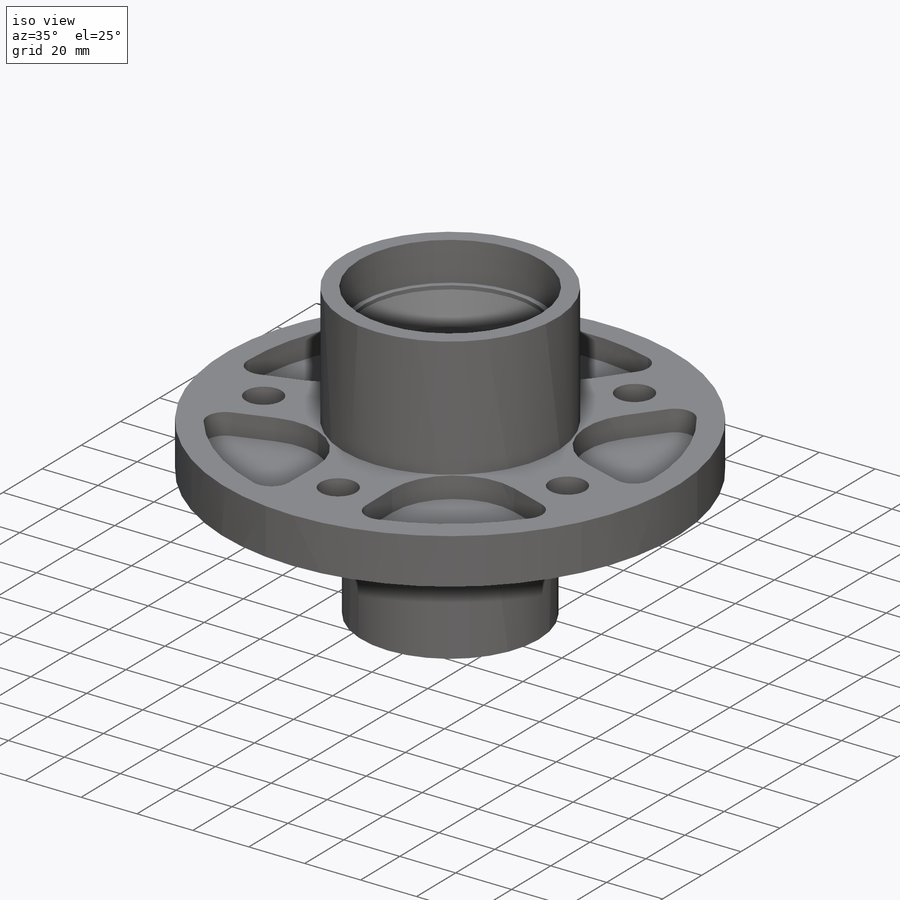
[diagram: iso view]
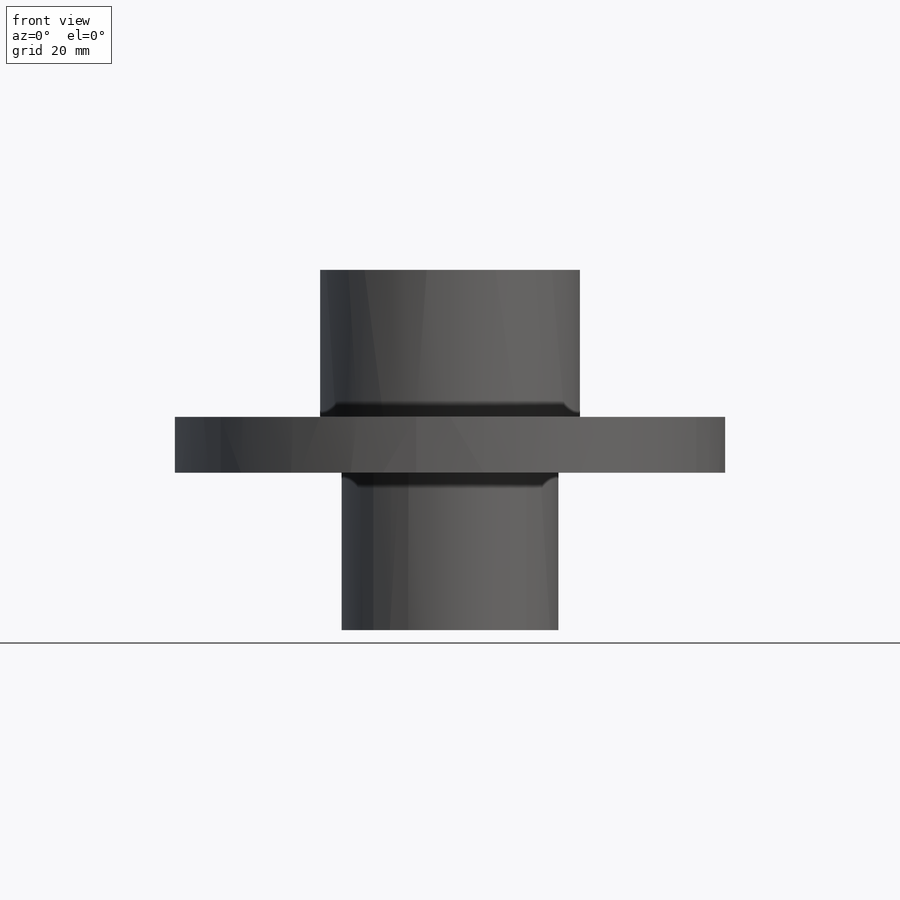
[diagram: front view]
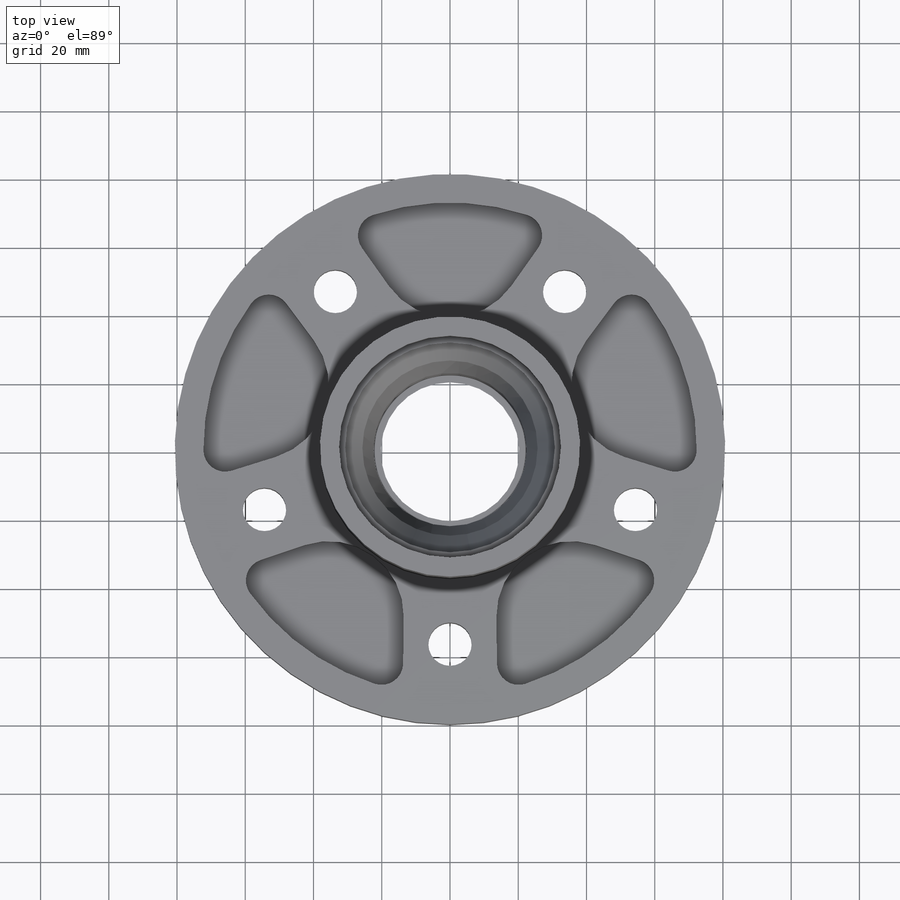
[diagram: top view]
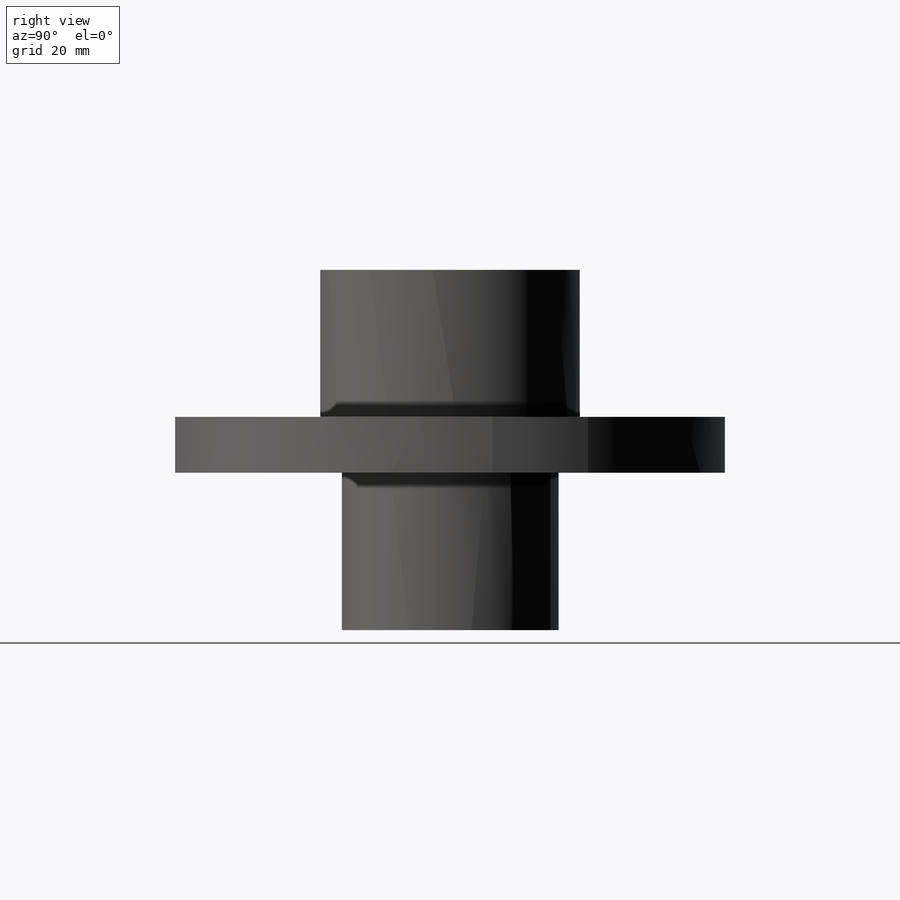
[diagram: right view]
SOLIDWORKS PART (.sldprt)
format: sldprt  version: not decoded by parser v0  size: 345,600 bytes
history: native  units: mm
features: sketch x5, cut_extrude x3, pattern_circular x3, material x1, revolve x1 (+11 scaffold rows collapsed)
feature tree (24):
  scaffold x11  (default folders/planes/origin — collapsed)
  material  "ASTM A36 Steel"
  sketch  "Sketch1"  dims[c1.D1=76.2mm c1.D2=5.588mm c1.D3=16.383mm c1.D4=63.5mm c1.D5=6.35mm c1.D6=46.101mm c1.D7=161.29mm c1.D8=43.053mm c1.D9=13.843mm c1.D10=~12.906547mm c2.D5=50.292mm]
  revolve  "Revolve1"  Angle=360deg
  sketch  "Sketch2"  dims[D1=12.7mm D2=114.3mm]
  cut_extrude  "Cut-Extrude1"  [1 undecoded]
  pattern_circular  "CirPattern1"  Count=5 Angle=72deg
  sketch  "Sketch3"  dims[c1.D1=~75.088645mm c1.D2=6.35mm c2.D1=8.382mm]
  cut_extrude  "Cut-Extrude2"  Depth=7.62mm
  pattern_circular  "CirPattern2"  Count=5 Angle=360deg
  sketch  "Sketch4"  dims[D1=0.0mm]
  sketch  "Sketch5"  dims[D1=57.15mm D2=2.3622mm]
  cut_extrude  "Cut-Extrude3"  Depth=12.7mm
  pattern_circular  "CirPattern3"  Count=6 Angle=360deg
decode coverage: 11 of 12 modeling features carry decoded parameters
note: ~ marks probable driven/reference dimensions
note: 1 parameter value undecoded
note: suppression state not decoded; provenance and decode notes live in map.json
